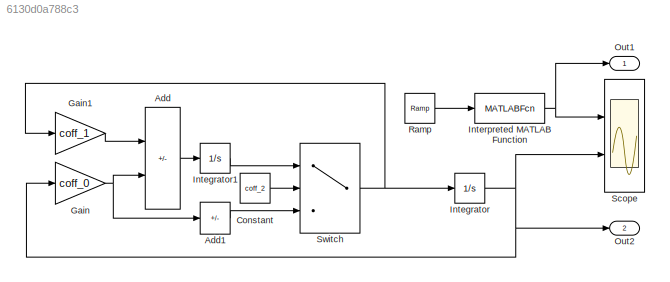
MODEL slx_6130d0a788c3
KIND model
CONFIG AbsTol = auto
CONFIG EnableMultiTasking = off
CONFIG FixedStep = auto
CONFIG MaxStep = 0.01
CONFIG MinStep = auto
CONFIG RelTol = 1e-7
CONFIG SampleTimeConstraint = Unconstrained
CONFIG SolverName = ode113
CONFIG StartTime = 0.0
CONFIG StopTime = 10
BLOCK [Sum] Add
  IconShape = rectangular
  Inputs = --
  Ports = [2, 1]
BLOCK [Sum] Add1
  IconShape = rectangular
  Inputs = -
  Ports = [1, 1]
BLOCK [Constant] Constant
  Value = coff_2
BLOCK [Gain] Gain
  Gain = coff_0
BLOCK [Gain] Gain1
  Gain = coff_1
BLOCK [Integrator] Integrator
  InitialCondition = y0
  Ports = [1, 1]
BLOCK [Integrator] Integrator1
  InitialCondition = y0dot1
  Ports = [1, 1]
BLOCK [MATLABFcn] Interpreted MATLAB Function
  MATLABFcn = fcn(u)
  Ports = [1, 1]
BLOCK [Outport] Out1
  SignalName = Calculated
BLOCK [Outport] Out2
  Port = 2
  SignalName = Sim
BLOCK [Reference] Ramp  REF=simulink/Sources/Ramp
  Ports = [0, 1]
  SourceBlock = simulink/Sources/Ramp
  SourceProductBaseCode = SL
  SourceType = Ramp
BLOCK [Scope] Scope
  Floating = off
  NumInputPorts = 2
  Ports = [2]
  ScopeSpecificationString = Simulink.scopes.TimeScopeBlockCfg('CurrentConfiguration', extmgr.ConfigurationSet(extmgr.Configuration('Core','General UI',true,'FigureColor',[0.247058823529412 0.247058823529412 0.247058823529412]),extmgr.Configuration('Core','Source UI',true),extmgr.Configuration('Sources','WiredSimulink',true),extmgr.Configuration('Visuals','Time Domain',true,'SerializedDisplays',{struct('MinYLimReal','-0.125',...<+1940ch>
BLOCK [Switch] Switch
  InputSameDT = off
  SaturateOnIntegerOverflow = off
  Threshold = 0.5
LINE Add1:1 -> Switch:3
LINE Add:1 -> Integrator1:1
LINE Constant:1 -> Switch:2
LINE Gain1:1 -> Add:1
NET Gain:1 -> Add1:1, Add:2
LINE Integrator1:1 -> Switch:1
NET Integrator:1 -> Gain:1, Out2:1, Scope:2
NET Interpreted MATLAB Function:1 -> Out1:1, Scope:1
LINE Ramp:1 -> Interpreted MATLAB Function:1
NET Switch:1 -> Gain1:1, Integrator:1
note: NET lines group one-source signal fan-out (src -> all destinations, sorted); 1:1 wires keep LINE
